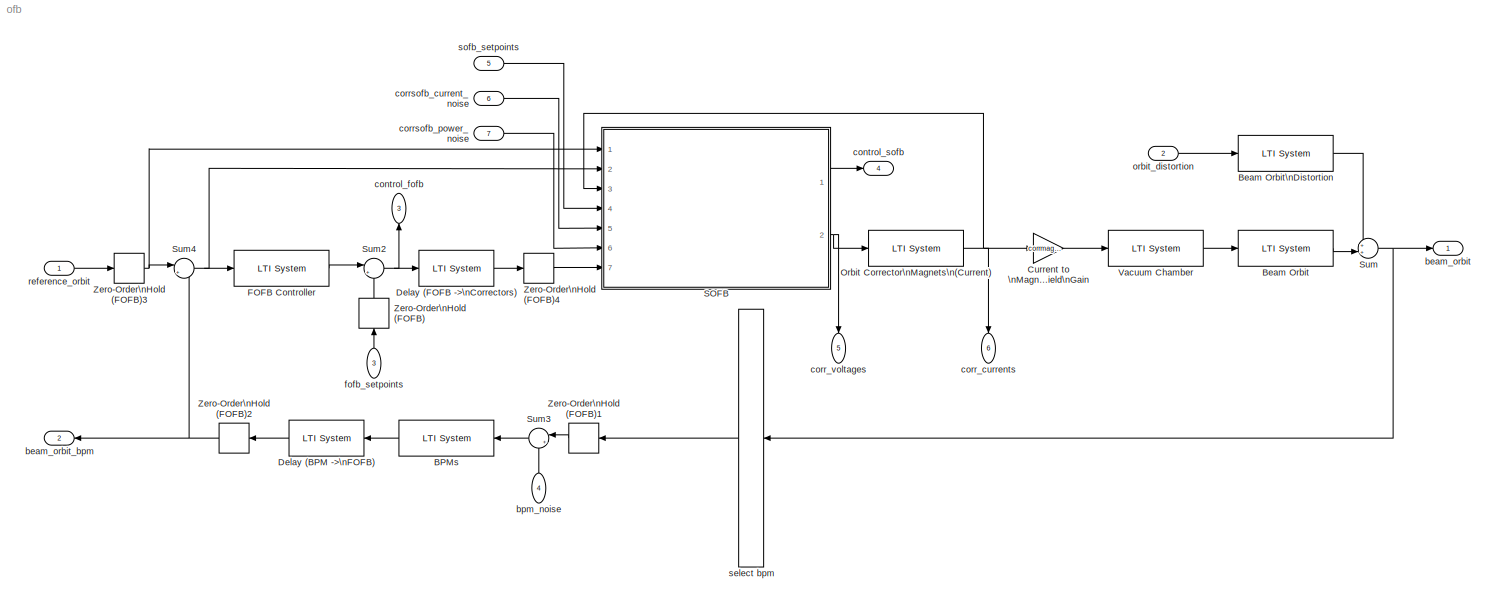
MODEL ofb
KIND model
BLOCK [Reference] BPMs  REF=cstblocks/LTI System
  IC = []
  Ports = [1, 1]
  SID = 222
  SourceBlock = cstblocks/LTI System
  SourceType = LTI Block
  sys = bpm
BLOCK [Reference] Beam Orbit  REF=cstblocks/LTI System
  IC = []
  Ports = [1, 1]
  SID = 228
  SourceBlock = cstblocks/LTI System
  SourceType = LTI Block
  sys = beam
BLOCK [Reference] Beam Orbit\nDistortion  REF=cstblocks/LTI System
  IC = []
  Ports = [1, 1]
  SID = 229
  SourceBlock = cstblocks/LTI System
  SourceType = LTI Block
  sys = distbeam
BLOCK [Gain] Current to \nMagnetic field\nGain
  Gain = corrmagnetgain
  OutDataTypeStr = Inherit: Inherit via internal rule
  ParamDataTypeStr = Inherit: Inherit via internal rule
  SID = 176
  SaturateOnIntegerOverflow = off
BLOCK [Reference] Delay (BPM ->\nFOFB)  REF=cstblocks/LTI System
  IC = []
  Ports = [1, 1]
  SID = 280
  SourceBlock = cstblocks/LTI System
  SourceType = LTI Block
  sys = delay.bpm
BLOCK [Reference] Delay (FOFB ->\nCorrectors)  REF=cstblocks/LTI System
  IC = []
  Ports = [1, 1]
  SID = 279
  SourceBlock = cstblocks/LTI System
  SourceType = LTI Block
  sys = delay.corrfofb
BLOCK [Reference] FOFB Controller  REF=cstblocks/LTI System
  IC = []
  Ports = [1, 1]
  SID = 245
  SourceBlock = cstblocks/LTI System
  SourceType = LTI Block
  sys = fofbctrl
BLOCK [Reference] Orbit Corrector\nMagnets\n(Current)  REF=cstblocks/LTI System
  IC = []
  Ports = [1, 1]
  SID = 226
  SourceBlock = cstblocks/LTI System
  SourceType = LTI Block
  sys = corrmagnet
BLOCK [ModelReference] SOFB
  CopyOfModelName = sofb_bypass.mdl
  DefaultDataLogging = on
  ModelNameDialog = sofb_bypass.mdl
  ModelReferenceVersion = 1.31
  Ports = [7, 2]
  SID = 277
BLOCK [Sum] Sum
  IconShape = round
  InputSameDT = off
  Inputs = ++|
  OutDataTypeStr = Inherit: Inherit via internal rule
  Ports = [2, 1]
  SID = 152
  SaturateOnIntegerOverflow = off
BLOCK [Sum] Sum2
  IconShape = round
  InputSameDT = off
  Inputs = |++
  OutDataTypeStr = Inherit: Inherit via internal rule
  Ports = [2, 1]
  SID = 221
  SaturateOnIntegerOverflow = off
BLOCK [Sum] Sum3
  IconShape = round
  InputSameDT = off
  Inputs = |++
  OutDataTypeStr = Inherit: Inherit via internal rule
  Ports = [2, 1]
  SID = 104
  SaturateOnIntegerOverflow = off
BLOCK [Sum] Sum4
  IconShape = round
  InputSameDT = off
  Inputs = |+-
  OutDataTypeStr = Inherit: Inherit via internal rule
  Ports = [2, 1]
  SID = 248
  SaturateOnIntegerOverflow = off
BLOCK [Reference] Vacuum Chamber  REF=cstblocks/LTI System
  IC = []
  Ports = [1, 1]
  SID = 227
  SourceBlock = cstblocks/LTI System
  SourceType = LTI Block
  sys = vacchamb
BLOCK [ZeroOrderHold] Zero-Order\nHold (FOFB)
  SID = 232
  SampleTime = [Ts fracdelay.bpm]
BLOCK [ZeroOrderHold] Zero-Order\nHold (FOFB)1
  SID = 241
  SampleTime = Ts
BLOCK [ZeroOrderHold] Zero-Order\nHold (FOFB)2
  SID = 242
  SampleTime = [Ts fracdelay.bpm]
BLOCK [ZeroOrderHold] Zero-Order\nHold (FOFB)3
  SID = 282
  SampleTime = [Ts fracdelay.bpm]
BLOCK [ZeroOrderHold] Zero-Order\nHold (FOFB)4
  SID = 244
  SampleTime = [Ts (fracdelay.bpm+fracdelay.corrfofb)]
BLOCK [Outport] beam_orbit
  IconDisplay = Port number
  SID = 106
BLOCK [Outport] beam_orbit_bpm
  IconDisplay = Port number
  Port = 2
  SID = 234
BLOCK [Inport] bpm_noise
  IconDisplay = Port number
  Port = 4
  PortDimensions = nbpm
  SID = 77
BLOCK [Outport] control_fofb
  IconDisplay = Port number
  Port = 3
  SID = 200
BLOCK [Outport] control_sofb
  IconDisplay = Port number
  Port = 4
  SID = 107
BLOCK [Outport] corr_currents
  IconDisplay = Port number
  Port = 6
  SID = 201
BLOCK [Outport] corr_voltages
  IconDisplay = Port number
  Port = 5
  SID = 108
BLOCK [Inport] corrsofb_current_noise
  IconDisplay = Port number
  Port = 6
  PortDimensions = ncorrsofb
  SID = 78
  SampleTime = 0
BLOCK [Inport] corrsofb_power_noise
  IconDisplay = Port number
  Port = 7
  PortDimensions = ncorrsofb
  SID = 79
  SampleTime = 0
BLOCK [Inport] fofb_setpoints
  IconDisplay = Port number
  Port = 3
  PortDimensions = ncorrfofb
  SID = 217
BLOCK [Inport] orbit_distortion
  IconDisplay = Port number
  Port = 2
  PortDimensions = ndist
  SID = 76
BLOCK [Inport] reference_orbit
  IconDisplay = Port number
  PortDimensions = nbpm
  SID = 202
  SampleTime = Ts
BLOCK [Selector] select bpm
  IndexOptions = Index vector (dialog)
  Indices = bpmordering
  InputPortWidth = norbit
  OutputSizes = 1
  Ports = [1, 1]
  SID = 233
BLOCK [Inport] sofb_setpoints
  IconDisplay = Port number
  Port = 5
  PortDimensions = ncorrsofb
  SID = 219
  SampleTime = Ts*s2ffactor
LINE BPMs:1 -> Delay (BPM ->\nFOFB):1
LINE Beam Orbit:1 -> Sum:2
LINE Beam Orbit\nDistortion:1 -> Sum:1
LINE Current to \nMagnetic field\nGain:1 -> Vacuum Chamber:1
LINE Delay (BPM ->\nFOFB):1 -> Zero-Order\nHold (FOFB)2:1
LINE Delay (FOFB ->\nCorrectors):1 -> Zero-Order\nHold (FOFB)4:1
LINE FOFB Controller:1 -> Sum2:1
NET Orbit Corrector\nMagnets\n(Current):1 -> Current to \nMagnetic field\nGain:1, SOFB:3, corr_currents:1
LINE SOFB:1 -> control_sofb:1
NET SOFB:2 -> Orbit Corrector\nMagnets\n(Current):1, corr_voltages:1
NET Sum2:1 -> Delay (FOFB ->\nCorrectors):1, control_fofb:1
LINE Sum3:1 -> BPMs:1
NET Sum4:1 -> FOFB Controller:1, SOFB:2
NET Sum:1 -> beam_orbit:1, select bpm:1
LINE Vacuum Chamber:1 -> Beam Orbit:1
LINE Zero-Order\nHold (FOFB)1:1 -> Sum3:1
NET Zero-Order\nHold (FOFB)2:1 -> Sum4:2, beam_orbit_bpm:1
NET Zero-Order\nHold (FOFB)3:1 -> SOFB:1, Sum4:1
LINE Zero-Order\nHold (FOFB)4:1 -> SOFB:7
LINE Zero-Order\nHold (FOFB):1 -> Sum2:2
LINE bpm_noise:1 -> Sum3:2
LINE corrsofb_current_noise:1 -> SOFB:5
LINE corrsofb_power_noise:1 -> SOFB:6
LINE fofb_setpoints:1 -> Zero-Order\nHold (FOFB):1
LINE orbit_distortion:1 -> Beam Orbit\nDistortion:1
LINE reference_orbit:1 -> Zero-Order\nHold (FOFB)3:1
LINE select bpm:1 -> Zero-Order\nHold (FOFB)1:1
LINE sofb_setpoints:1 -> SOFB:4
note: NET lines group one-source signal fan-out (src -> all destinations, sorted); 1:1 wires keep LINE
